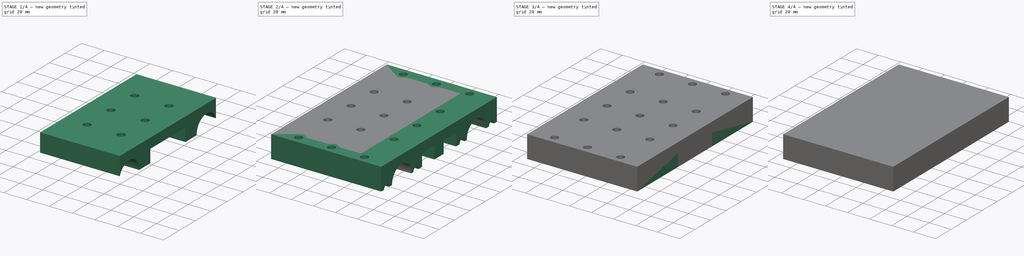
[diagram: build sequence overview — one tinted view per stage of 4, left to right]
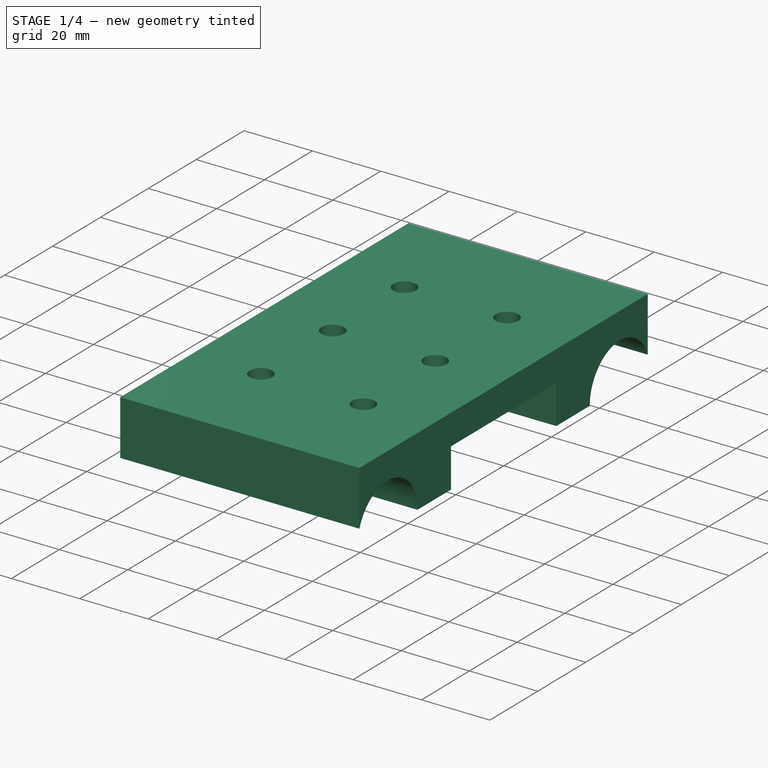
[diagram: stage 1 of 4 — iso view after this stage's code; geometry added in this stage tinted green]
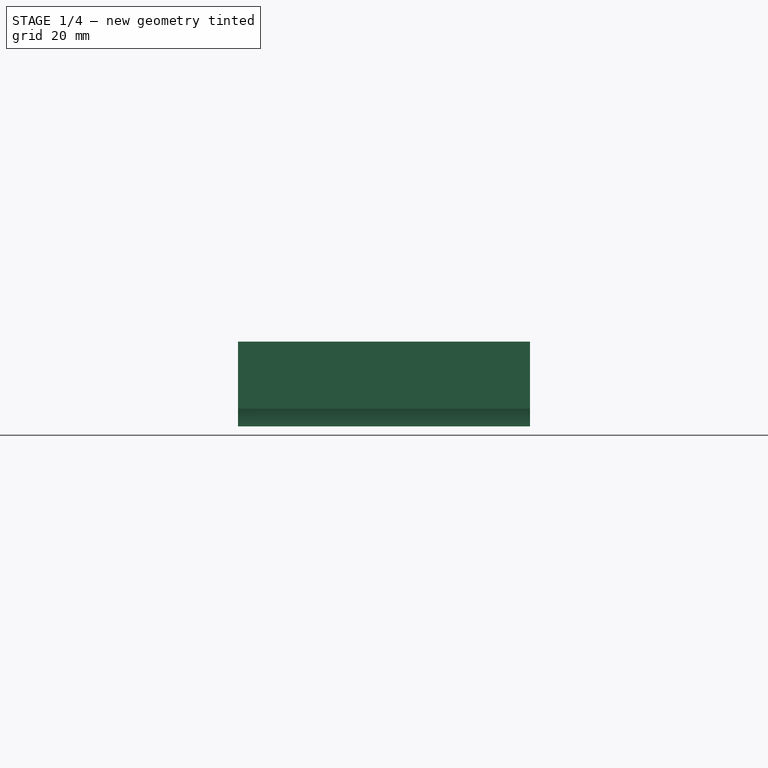
[diagram: stage 1 of 4 — front view after this stage's code; geometry added in this stage tinted green]
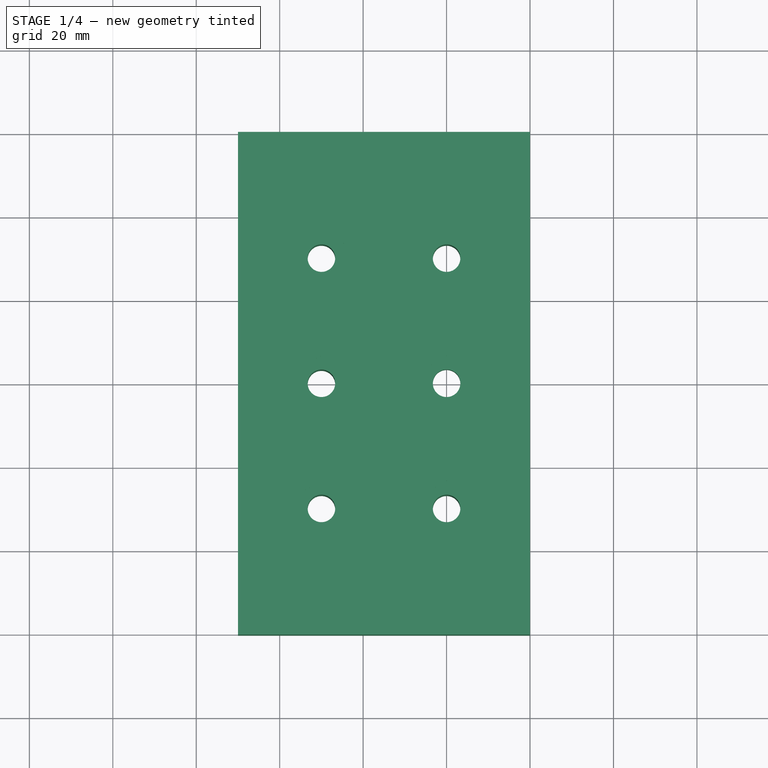
[diagram: stage 1 of 4 — top view after this stage's code; geometry added in this stage tinted green]
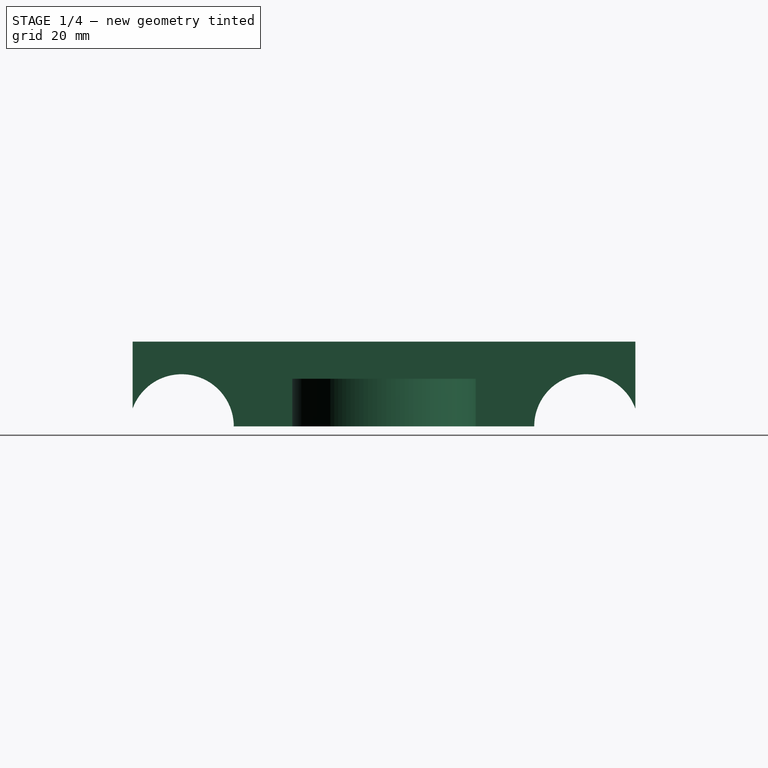
[diagram: stage 1 of 4 — right view after this stage's code; geometry added in this stage tinted green]
FCSTD DOCUMENT  (FreeCAD 0.16R6712 (Git))
Label: cnc_torch_idler_v19_10
License: All rights reserved
LicenseURL: http://en.wikipedia.org/wiki/All_rights_reserved
objects: Sketcher::SketchObject×10, PartDesign::Pocket×9, PartDesign::Pad×1
note: 30 computed .brp shape members not serialized (recipe doc carries the construction recipe); baked Part::Feature solids carry a one-line shape summary decoded from their .brp

FEATURE [Sketcher::SketchObject] Sketch008  label="NutCatcherSide2Sketch"
  Placement = pos=(-43.904,0,0) rot=(0.57735,-0.57735,-0.57735;2.0944rad)
  sketch-geometry (39):
    g0: LineSegment [constr] StartX=0 StartY=0 StartZ=0 EndX=-30 EndY=0 EndZ=0
    g1: LineSegment [constr] StartX=-30 StartY=0 StartZ=0 EndX=-68 EndY=0 EndZ=0
    g2: LineSegment [constr] StartX=0 StartY=0 StartZ=0 EndX=30 EndY=0 EndZ=0
    g3: LineSegment [constr] StartX=30 StartY=0 StartZ=0 EndX=68 EndY=0 EndZ=0
    g4: LineSegment StartX=-62.2842 StartY=3.3 StartZ=0 EndX=-68 EndY=6.6 EndZ=0
    g5: LineSegment StartX=-68 StartY=6.6 StartZ=0 EndX=-73.7158 EndY=3.3 EndZ=0
    g6: LineSegment StartX=-73.7158 StartY=3.3 StartZ=0 EndX=-73.7158 EndY=-3.3 EndZ=0
    g7: LineSegment StartX=-73.7158 StartY=-3.3 StartZ=0 EndX=-68 EndY=-6.6 EndZ=0
    g8: LineSegment StartX=-68 StartY=-6.6 StartZ=0 EndX=-62.2842 EndY=-3.3 EndZ=0
    g9: LineSegment StartX=-62.2842 StartY=-3.3 StartZ=0 EndX=-62.2842 EndY=3.3 EndZ=0
    g10: Circle [constr] CenterX=-68 CenterY=0 CenterZ=0 NormalX=0 NormalY=0 NormalZ=1 Radius=6.6
    g11: LineSegment StartX=-24.2842 StartY=3.3 StartZ=0 EndX=-30 EndY=6.6 EndZ=0
    g12: LineSegment StartX=-30 StartY=6.6 StartZ=0 EndX=-35.7158 EndY=3.3 EndZ=0
    g13: LineSegment StartX=-35.7158 StartY=3.3 StartZ=0 EndX=-35.7158 EndY=-3.3 EndZ=0
    g14: LineSegment StartX=-35.7158 StartY=-3.3 StartZ=0 EndX=-30 EndY=-6.6 EndZ=0
    g15: LineSegment StartX=-30 StartY=-6.6 StartZ=0 EndX=-24.2842 EndY=-3.3 EndZ=0
    g16: LineSegment StartX=-24.2842 StartY=-3.3 StartZ=0 EndX=-24.2842 EndY=3.3 EndZ=0
    g17: Circle [constr] CenterX=-30 CenterY=0 CenterZ=0 NormalX=0 NormalY=0 NormalZ=1 Radius=6.6
    g18: LineSegment StartX=5.71577 StartY=3.3 StartZ=0 EndX=0 EndY=6.6 EndZ=0
    g19: LineSegment StartX=0 StartY=6.6 StartZ=0 EndX=-5.71577 EndY=3.3 EndZ=0
    g20: LineSegment StartX=-5.71577 StartY=3.3 StartZ=0 EndX=-5.71577 EndY=-3.3 EndZ=0
    g21: LineSegment StartX=-5.71577 StartY=-3.3 StartZ=0 EndX=0 EndY=-6.6 EndZ=0
    g22: LineSegment StartX=0 StartY=-6.6 StartZ=0 EndX=5.71577 EndY=-3.3 EndZ=0
    g23: LineSegment StartX=5.71577 StartY=-3.3 StartZ=0 EndX=5.71577 EndY=3.3 EndZ=0
    g24: Circle [constr] CenterX=0 CenterY=0 CenterZ=0 NormalX=0 NormalY=0 NormalZ=1 Radius=6.6
    g25: LineSegment StartX=35.7158 StartY=3.3 StartZ=0 EndX=30 EndY=6.6 EndZ=0
    g26: LineSegment StartX=30 StartY=6.6 StartZ=0 EndX=24.2842 EndY=3.3 EndZ=0
    g27: LineSegment StartX=24.2842 StartY=3.3 StartZ=0 EndX=24.2842 EndY=-3.3 EndZ=0
    g28: LineSegment StartX=24.2842 StartY=-3.3 StartZ=0 EndX=30 EndY=-6.6 EndZ=0
    g29: LineSegment StartX=30 StartY=-6.6 StartZ=0 EndX=35.7158 EndY=-3.3 EndZ=0
    g30: LineSegment StartX=35.7158 StartY=-3.3 StartZ=0 EndX=35.7158 EndY=3.3 EndZ=0
    g31: Circle [constr] CenterX=30 CenterY=0 CenterZ=0 NormalX=0 NormalY=0 NormalZ=1 Radius=6.6
    g32: LineSegment StartX=73.7158 StartY=3.3 StartZ=0 EndX=68 EndY=6.6 EndZ=0
    g33: LineSegment StartX=68 StartY=6.6 StartZ=0 EndX=62.2842 EndY=3.3 EndZ=0
    g34: LineSegment StartX=62.2842 StartY=3.3 StartZ=0 EndX=62.2842 EndY=-3.3 EndZ=0
    g35: LineSegment StartX=62.2842 StartY=-3.3 StartZ=0 EndX=68 EndY=-6.6 EndZ=0
    g36: LineSegment StartX=68 StartY=-6.6 StartZ=0 EndX=73.7158 EndY=-3.3 EndZ=0
    g37: LineSegment StartX=73.7158 StartY=-3.3 StartZ=0 EndX=73.7158 EndY=3.3 EndZ=0
    g38: Circle [constr] CenterX=68 CenterY=0 CenterZ=0 NormalX=0 NormalY=0 NormalZ=1 Radius=6.6
  constraints (93):
    c: Horizontal(g0)
    c: Horizontal(g1)
    c: Horizontal(g2)
    c: Horizontal(g3)
    c: Coincident(g0,g-1)
    c: Coincident(g2,g-1)
    c: Coincident(g1,g0)
    c: Coincident(g3,g2)
    c: Equal(g0,g2)
    c: Equal(g1,g3)
    c: DistanceX(g0,g-1) = 30
    c: DistanceX(g1,g0) = 38
    c: Coincident(g4,g5)
    c: Coincident(g5,g6)
    c: Coincident(g6,g7)
    c: Coincident(g7,g8)
    c: Coincident(g8,g9)
    c: Coincident(g9,g4)
    c: Equal(g4, g5-g9) x5
    c: PointOnObject(g4,g10)
    c: PointOnObject(g5,g10)
    c: PointOnObject(g6,g10)
    c: PointOnObject(g7,g10)
    c: PointOnObject(g8,g10)
    c: PointOnObject(g9,g10)
    c: Vertical(g9)
    c: Coincident(g11,g12)
    c: Coincident(g12,g13)
    c: Coincident(g13,g14)
    c: Coincident(g14,g15)
    c: Coincident(g15,g16)
    c: Coincident(g16,g11)
    c: Equal(g11, g12-g16) x5
    c: PointOnObject(g11,g17)
    c: PointOnObject(g12,g17)
    c: PointOnObject(g13,g17)
    c: PointOnObject(g14,g17)
    c: PointOnObject(g15,g17)
    c: PointOnObject(g16,g17)
    c: Vertical(g16)
    c: Coincident(g18,g19)
    c: Coincident(g19,g20)
    c: Coincident(g20,g21)
    c: Coincident(g21,g22)
    c: Coincident(g22,g23)
    c: Coincident(g23,g18)
    c: Equal(g18, g19-g23) x5
    c: PointOnObject(g18,g24)
    c: PointOnObject(g19,g24)
    c: PointOnObject(g20,g24)
    c: PointOnObject(g21,g24)
    c: PointOnObject(g22,g24)
    c: PointOnObject(g23,g24)
    c: Vertical(g23)
    c: PointOnObject(g24,g-2)
    c: Coincident(g25,g26)
    c: Coincident(g26,g27)
    c: Coincident(g27,g28)
    c: Coincident(g28,g29)
    c: Coincident(g29,g30)
    c: Coincident(g30,g25)
    c: Equal(g25, g26-g30) x5
    c: PointOnObject(g25,g31)
    c: PointOnObject(g26,g31)
    c: PointOnObject(g27,g31)
    c: PointOnObject(g28,g31)
    c: PointOnObject(g29,g31)
    c: PointOnObject(g30,g31)
    c: Vertical(g30)
    c: Coincident(g32,g33)
    c: Coincident(g33,g34)
    c: Coincident(g34,g35)
    c: Coincident(g35,g36)
    c: Coincident(g36,g37)
    c: Coincident(g37,g32)
    c: Equal(g32, g33-g37) x5
    c: PointOnObject(g32,g38)
    c: PointOnObject(g33,g38)
    c: PointOnObject(g34,g38)
    c: PointOnObject(g35,g38)
    c: PointOnObject(g36,g38)
    c: PointOnObject(g37,g38)
    c: Vertical(g37)
    c: Equal(g10,g17)
    c: Equal(g17,g24)
    c: Equal(g24,g31)
    c: Equal(g31,g38)
    c: Radius(g24) = 6.6
    c: Coincident(g-1,g24)
    c: Coincident(g1,g10)
    c: Coincident(g0,g17)
    c: Coincident(g2,g31)
    c: Coincident(g3,g38)
FEATURE [PartDesign::Pocket] Pocket007  label="NutCatcherSide2Pocket"
  Length = 6.604
  Type = 0
FEATURE [Sketcher::SketchObject] Sketch009  label="cutoff_sketch"
  ExternalGeometry = -> [Pocket007]
  Placement = pos=(0,0,20.32) rot=(0,0,1;0rad)
  Support = -> Pocket007 [Face5]
  sketch-geometry (8):
    g0: LineSegment StartX=-50 StartY=75 StartZ=0 EndX=50 EndY=75 EndZ=0
    g1: LineSegment StartX=50 StartY=75 StartZ=0 EndX=50 EndY=-75 EndZ=0
    g2: LineSegment StartX=50 StartY=-75 StartZ=0 EndX=-50 EndY=-75 EndZ=0
    g3: LineSegment StartX=-50 StartY=75 StartZ=0 EndX=-50 EndY=60.25 EndZ=0
    g4: LineSegment StartX=-50 StartY=-75 StartZ=0 EndX=-50 EndY=-60.25 EndZ=0
    g5: LineSegment StartX=-50 StartY=60.25 StartZ=0 EndX=20 EndY=60.25 EndZ=0
    g6: LineSegment StartX=-50 StartY=-60.25 StartZ=0 EndX=20 EndY=-60.25 EndZ=0
    g7: LineSegment StartX=20 StartY=60.25 StartZ=0 EndX=20 EndY=-60.25 EndZ=0
  constraints (22):
    c: Coincident(g0,g1)
    c: Coincident(g1,g2)
    c: Horizontal(g0)
    c: Horizontal(g2)
    c: Vertical(g1)
    c: Coincident(g0,g-4)
    c: Coincident(g1,g-5)
    c: Coincident(g3,g0)
    c: Vertical(g3)
    c: Coincident(g4,g2)
    c: Vertical(g4)
    c: Equal(g4,g3)
    c: DistanceY(g3,g3) = 14.75
    c: Coincident(g5,g3)
    c: Horizontal(g5)
    c: Coincident(g6,g4)
    c: Horizontal(g6)
    c: Coincident(g7,g5)
    c: Coincident(g7,g6)
    c: Vertical(g7)
    c: DistanceX(g5,g0) = 30
    c: Coincident(g-5,g2)
FEATURE [PartDesign::Pocket] Pocket008  label="cutoff_pocket"
  Length = 50.8
  Sketch = -> Sketch009
  Type = 0
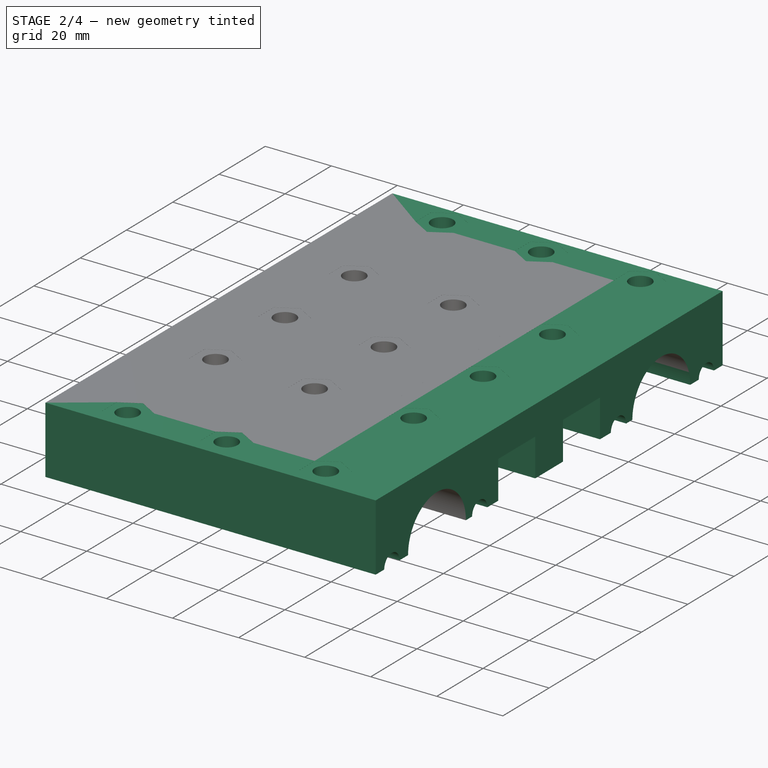
[diagram: stage 2 of 4 — iso view after this stage's code; geometry added in this stage tinted green]
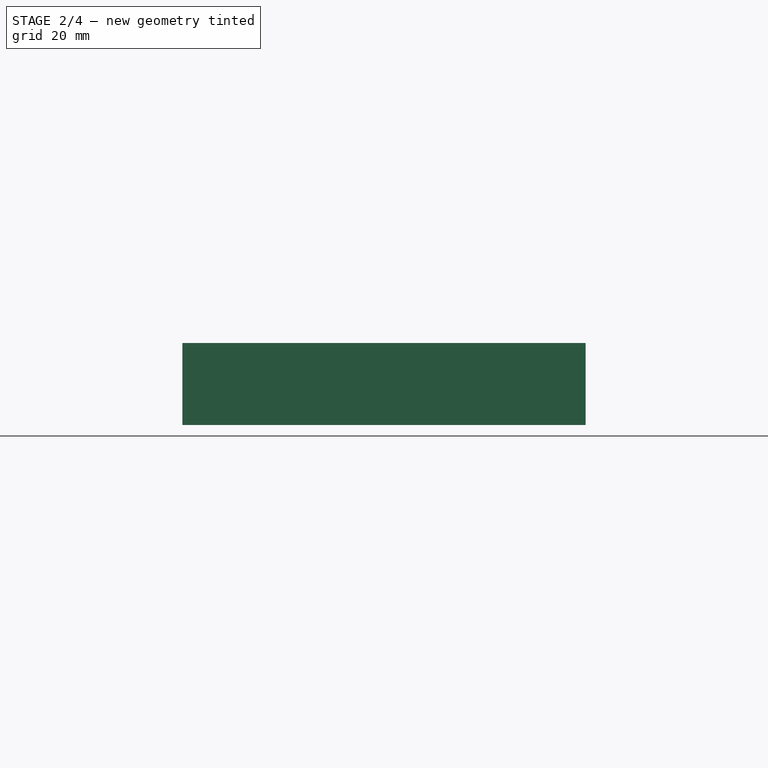
[diagram: stage 2 of 4 — front view after this stage's code; geometry added in this stage tinted green]
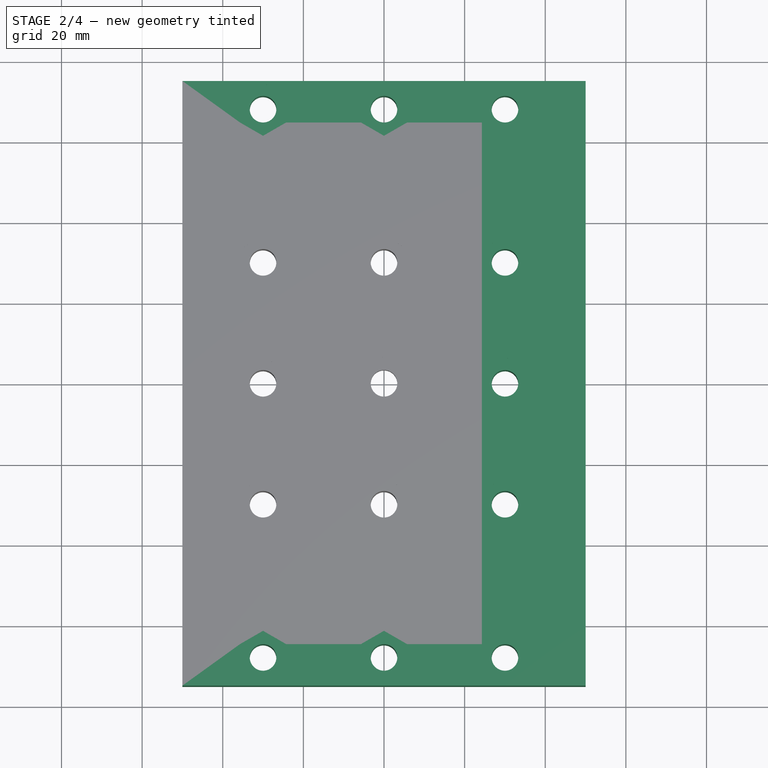
[diagram: stage 2 of 4 — top view after this stage's code; geometry added in this stage tinted green]
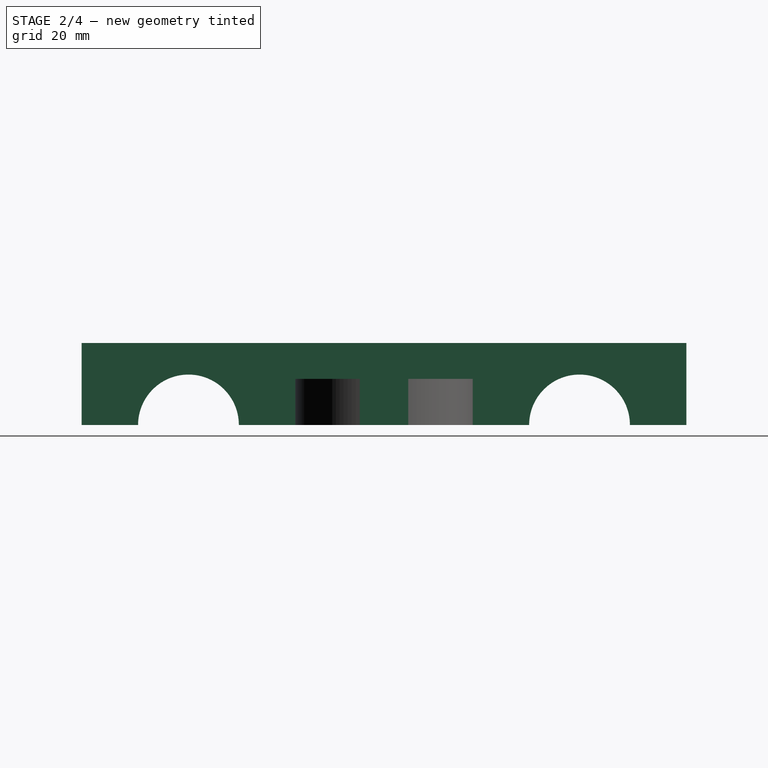
[diagram: stage 2 of 4 — right view after this stage's code; geometry added in this stage tinted green]
FEATURE [Sketcher::SketchObject] Sketch005  label="BoltHolesSide1Sketch"
  Placement = pos=(50,0,0) rot=(0.57735,0.57735,0.57735;2.0944rad)
  sketch-geometry (8):
    g0: LineSegment [constr] StartX=0 StartY=0 StartZ=0 EndX=-30 EndY=0 EndZ=0
    g1: LineSegment [constr] StartX=0 StartY=0 StartZ=0 EndX=30 EndY=0 EndZ=0
    g2: Circle CenterX=-30 CenterY=0 CenterZ=0 NormalX=0 NormalY=0 NormalZ=1 Radius=3.3
    g3: Circle CenterX=30 CenterY=0 CenterZ=0 NormalX=0 NormalY=0 NormalZ=1 Radius=3.3
    g4: LineSegment [constr] StartX=-30 StartY=0 StartZ=0 EndX=-68 EndY=0 EndZ=0
    g5: LineSegment [constr] StartX=30 StartY=0 StartZ=0 EndX=68 EndY=0 EndZ=0
    g6: Circle CenterX=-68 CenterY=0 CenterZ=0 NormalX=0 NormalY=0 NormalZ=1 Radius=3.3
    g7: Circle CenterX=68 CenterY=0 CenterZ=0 NormalX=0 NormalY=0 NormalZ=1 Radius=3.3
  constraints (20):
    c: Horizontal(g0)
    c: Coincident(g0,g-1)
    c: Horizontal(g1)
    c: Coincident(g1,g-1)
    c: Equal(g0,g1)
    c: DistanceX(g0,g-1) = 30
    c: Coincident(g2,g0)
    c: Coincident(g3,g1)
    c: Equal(g2,g3)
    c: Radius(g2) = 3.3
    c: Horizontal(g4)
    c: Horizontal(g5)
    c: Coincident(g4,g0)
    c: Coincident(g5,g1)
    c: Equal(g5,g4)
    c: DistanceX(g4,g4) = 38
    c: Equal(g7,g6)
    c: Equal(g6,g2)
    c: Coincident(g6,g4)
    c: Coincident(g7,g5)
FEATURE [PartDesign::Pocket] Pocket004  label="BoltHolesSide1Pocket"
  Length = 6.6
  Type = 0
FEATURE [Sketcher::SketchObject] Sketch006  label="NutCatcherSide1Sketch"
  Placement = pos=(43.4,0,0) rot=(0.57735,0.57735,0.57735;2.0944rad)
  sketch-geometry (32):
    g0: LineSegment [constr] StartX=0 StartY=0 StartZ=0 EndX=-30 EndY=0 EndZ=0
    g1: LineSegment [constr] StartX=-30 StartY=0 StartZ=0 EndX=-68 EndY=0 EndZ=0
    g2: LineSegment [constr] StartX=0 StartY=0 StartZ=0 EndX=30 EndY=0 EndZ=0
    g3: LineSegment [constr] StartX=30 StartY=0 StartZ=0 EndX=68 EndY=0 EndZ=0
    g4: LineSegment StartX=-62.2842 StartY=3.3 StartZ=0 EndX=-68 EndY=6.6 EndZ=0
    g5: LineSegment StartX=-68 StartY=6.6 StartZ=0 EndX=-73.7158 EndY=3.3 EndZ=0
    g6: LineSegment StartX=-73.7158 StartY=3.3 StartZ=0 EndX=-73.7158 EndY=-3.3 EndZ=0
    g7: LineSegment StartX=-73.7158 StartY=-3.3 StartZ=0 EndX=-68 EndY=-6.6 EndZ=0
    g8: LineSegment StartX=-68 StartY=-6.6 StartZ=0 EndX=-62.2842 EndY=-3.3 EndZ=0
    g9: LineSegment StartX=-62.2842 StartY=-3.3 StartZ=0 EndX=-62.2842 EndY=3.3 EndZ=0
    g10: Circle [constr] CenterX=-68 CenterY=0 CenterZ=0 NormalX=0 NormalY=0 NormalZ=1 Radius=6.6
    g11: LineSegment StartX=-24.2842 StartY=3.3 StartZ=0 EndX=-30 EndY=6.6 EndZ=0
    g12: LineSegment StartX=-30 StartY=6.6 StartZ=0 EndX=-35.7158 EndY=3.3 EndZ=0
    g13: LineSegment StartX=-35.7158 StartY=3.3 StartZ=0 EndX=-35.7158 EndY=-3.3 EndZ=0
    g14: LineSegment StartX=-35.7158 StartY=-3.3 StartZ=0 EndX=-30 EndY=-6.6 EndZ=0
    g15: LineSegment StartX=-30 StartY=-6.6 StartZ=0 EndX=-24.2842 EndY=-3.3 EndZ=0
    g16: LineSegment StartX=-24.2842 StartY=-3.3 StartZ=0 EndX=-24.2842 EndY=3.3 EndZ=0
    g17: Circle [constr] CenterX=-30 CenterY=0 CenterZ=0 NormalX=0 NormalY=0 NormalZ=1 Radius=6.6
    g18: LineSegment StartX=35.7158 StartY=3.3 StartZ=0 EndX=30 EndY=6.6 EndZ=0
    g19: LineSegment StartX=30 StartY=6.6 StartZ=0 EndX=24.2842 EndY=3.3 EndZ=0
    g20: LineSegment StartX=24.2842 StartY=3.3 StartZ=0 EndX=24.2842 EndY=-3.3 EndZ=0
    g21: LineSegment StartX=24.2842 StartY=-3.3 StartZ=0 EndX=30 EndY=-6.6 EndZ=0
    g22: LineSegment StartX=30 StartY=-6.6 StartZ=0 EndX=35.7158 EndY=-3.3 EndZ=0
    g23: LineSegment StartX=35.7158 StartY=-3.3 StartZ=0 EndX=35.7158 EndY=3.3 EndZ=0
    g24: Circle [constr] CenterX=30 CenterY=0 CenterZ=0 NormalX=0 NormalY=0 NormalZ=1 Radius=6.6
    g25: LineSegment StartX=73.7158 StartY=3.3 StartZ=0 EndX=68 EndY=6.6 EndZ=0
    g26: LineSegment StartX=68 StartY=6.6 StartZ=0 EndX=62.2842 EndY=3.3 EndZ=0
    g27: LineSegment StartX=62.2842 StartY=3.3 StartZ=0 EndX=62.2842 EndY=-3.3 EndZ=0
    g28: LineSegment StartX=62.2842 StartY=-3.3 StartZ=0 EndX=68 EndY=-6.6 EndZ=0
    g29: LineSegment StartX=68 StartY=-6.6 StartZ=0 EndX=73.7158 EndY=-3.3 EndZ=0
    g30: LineSegment StartX=73.7158 StartY=-3.3 StartZ=0 EndX=73.7158 EndY=3.3 EndZ=0
    g31: Circle [constr] CenterX=68 CenterY=0 CenterZ=0 NormalX=0 NormalY=0 NormalZ=1 Radius=6.6
  constraints (72):
    c: Horizontal(g0)
    c: Horizontal(g1)
    c: Horizontal(g2)
    c: Horizontal(g3)
    c: Equal(g0,g2)
    c: DistanceX(g0,g-1) = 30
    c: Coincident(g1,g0)
    c: Coincident(g3,g2)
    c: Equal(g1,g3)
    c: DistanceX(g1,g0) = 38
    c: Coincident(g4,g5)
    c: Coincident(g5,g6)
    c: Coincident(g6,g7)
    c: Coincident(g7,g8)
    c: Coincident(g8,g9)
    c: Coincident(g9,g4)
    c: Equal(g4, g5-g9) x5
    c: PointOnObject(g4,g10)
    c: PointOnObject(g5,g10)
    c: PointOnObject(g6,g10)
    c: PointOnObject(g7,g10)
    c: PointOnObject(g8,g10)
    c: PointOnObject(g9,g10)
    c: Vertical(g9)
    c: Coincident(g11,g12)
    c: Coincident(g12,g13)
    c: Coincident(g13,g14)
    c: Coincident(g14,g15)
    c: Coincident(g15,g16)
    c: Coincident(g16,g11)
    c: Equal(g11, g12-g16) x5
    c: PointOnObject(g11,g17)
    c: PointOnObject(g12,g17)
    c: PointOnObject(g13,g17)
    c: PointOnObject(g14,g17)
    c: PointOnObject(g15,g17)
    c: PointOnObject(g16,g17)
    c: Vertical(g16)
    c: Coincident(g18,g19)
    c: Coincident(g19,g20)
    c: Coincident(g20,g21)
    c: Coincident(g21,g22)
    c: Coincident(g22,g23)
    c: Coincident(g23,g18)
    c: Equal(g18, g19-g23) x5
    c: PointOnObject(g18,g24)
    c: PointOnObject(g19,g24)
    c: PointOnObject(g20,g24)
    c: PointOnObject(g21,g24)
    c: PointOnObject(g22,g24)
    c: PointOnObject(g23,g24)
    c: Vertical(g23)
    c: Coincident(g25,g26)
    c: Coincident(g26,g27)
    c: Coincident(g27,g28)
    c: Coincident(g28,g29)
    c: Coincident(g29,g30)
    c: Coincident(g30,g25)
    c: Equal(g25, g26-g30) x5
    c: PointOnObject(g25,g31)
    c: PointOnObject(g26,g31)
    c: PointOnObject(g27,g31)
    c: PointOnObject(g28,g31)
    c: PointOnObject(g29,g31)
    c: PointOnObject(g30,g31)
    c: Vertical(g30)
    c: Equal(g31,g24)
    c: Equal(g17,g10)
    c: Coincident(g3,g31)
    c: Coincident(g2,g24)
    c: Coincident(g0,g17)
    c: Coincident(g1,g10)
FEATURE [PartDesign::Pocket] Pocket005  label="NutCatcherSide1Pocket"
  Length = 6.6
  Type = 0
FEATURE [Sketcher::SketchObject] Sketch007  label="BoltHolesSide2Sketch"
  Placement = pos=(-50,0,0) rot=(0.57735,-0.57735,-0.57735;2.0944rad)
  sketch-geometry (9):
    g0: LineSegment [constr] StartX=0 StartY=0 StartZ=0 EndX=-30 EndY=0 EndZ=0
    g1: LineSegment [constr] StartX=-30 StartY=0 StartZ=0 EndX=-68 EndY=0 EndZ=0
    g2: LineSegment [constr] StartX=0 StartY=0 StartZ=0 EndX=30 EndY=0 EndZ=0
    g3: LineSegment [constr] StartX=30 StartY=0 StartZ=0 EndX=68 EndY=0 EndZ=0
    g4: Circle CenterX=-68 CenterY=0 CenterZ=0 NormalX=0 NormalY=0 NormalZ=1 Radius=3.3
    g5: Circle CenterX=-30 CenterY=0 CenterZ=0 NormalX=0 NormalY=0 NormalZ=1 Radius=3.3
    g6: Circle CenterX=0 CenterY=0 CenterZ=0 NormalX=0 NormalY=0 NormalZ=1 Radius=3.3
    g7: Circle CenterX=30 CenterY=0 CenterZ=0 NormalX=0 NormalY=0 NormalZ=1 Radius=3.3
    g8: Circle CenterX=68 CenterY=0 CenterZ=0 NormalX=0 NormalY=0 NormalZ=1 Radius=3.3
  constraints (22):
    c: Horizontal(g0)
    c: Horizontal(g1)
    c: Horizontal(g2)
    c: Horizontal(g3)
    c: Coincident(g0,g-1)
    c: Coincident(g2,g-1)
    c: Coincident(g1,g0)
    c: Coincident(g3,g2)
    c: Equal(g0,g2)
    c: DistanceX(g0,g-1) = 30
    c: Equal(g1,g3)
    c: DistanceX(g1,g0) = 38
    c: Equal(g4,g5)
    c: Equal(g5,g6)
    c: Equal(g6,g7)
    c: Equal(g7,g8)
    c: Radius(g6) = 3.3
    c: Coincident(g-1,g6)
    c: Coincident(g2,g7)
    c: Coincident(g0,g5)
    c: Coincident(g1,g4)
    c: Coincident(g3,g8)
FEATURE [PartDesign::Pocket] Pocket006  label="BoltHolesSide2Pocket"
  Length = 6.096
  Type = 0
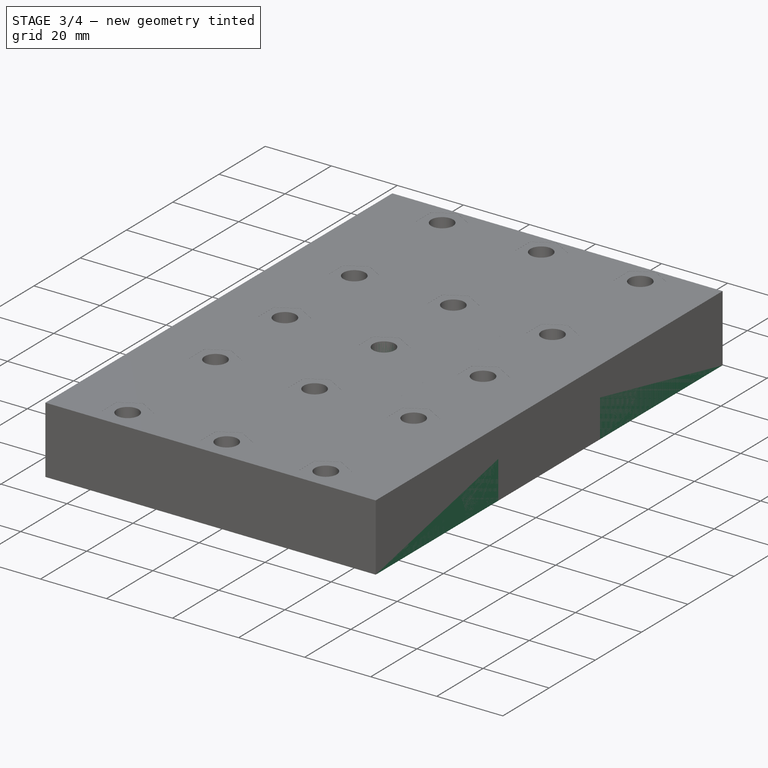
[diagram: stage 3 of 4 — iso view after this stage's code; geometry added in this stage tinted green]
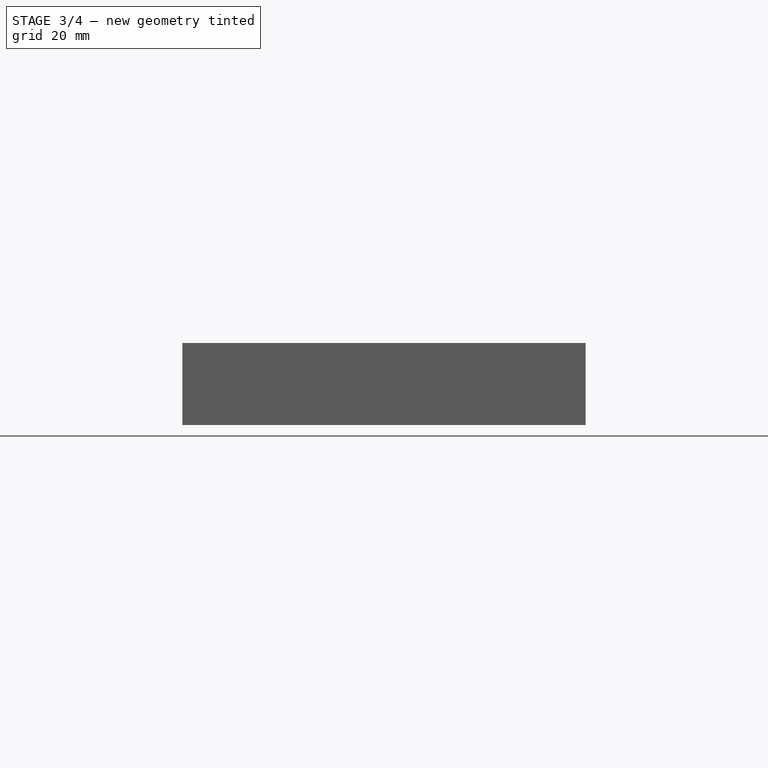
[diagram: stage 3 of 4 — front view after this stage's code; geometry added in this stage tinted green]
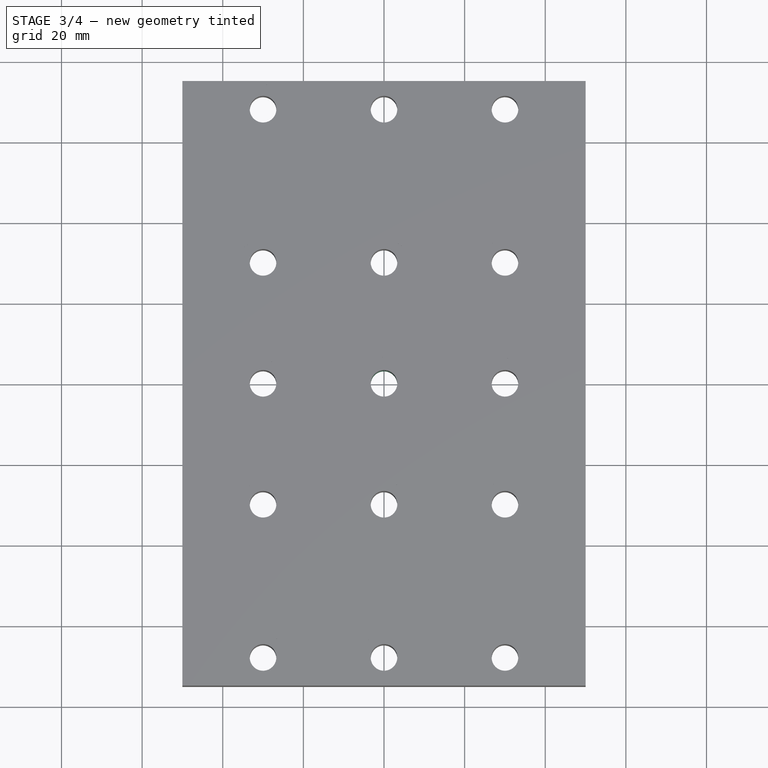
[diagram: stage 3 of 4 — top view after this stage's code; geometry added in this stage tinted green]
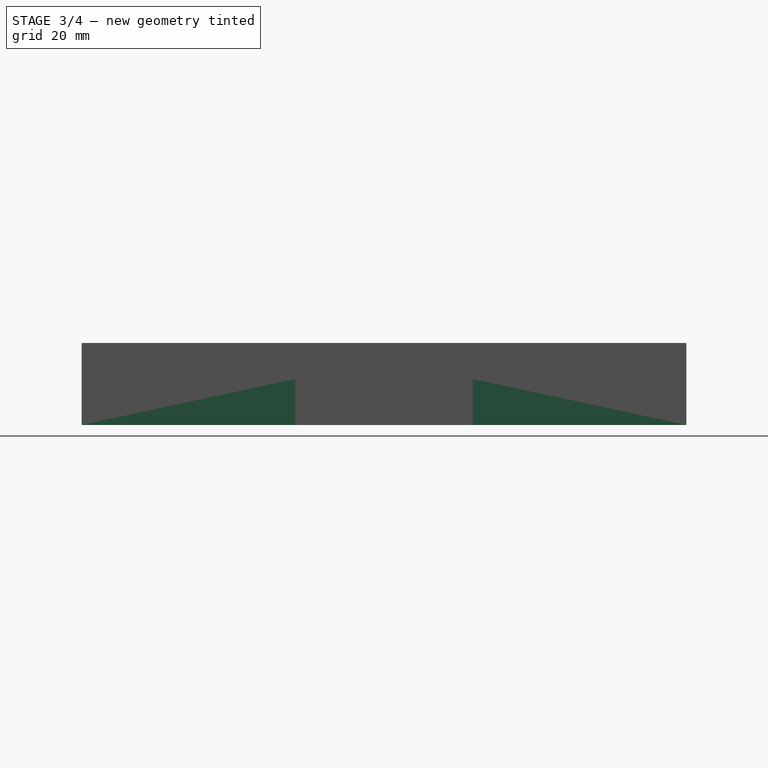
[diagram: stage 3 of 4 — right view after this stage's code; geometry added in this stage tinted green]
FEATURE [Sketcher::SketchObject] Sketch002  label="BoltHolesFrontSketch"
  Placement = pos=(0,0,20.2946) rot=(0,0,1;0rad)
  sketch-geometry (31):
    g0: LineSegment [constr] StartX=-30 StartY=30 StartZ=0 EndX=30 EndY=30 EndZ=0
    g1: LineSegment [constr] StartX=30 StartY=30 StartZ=0 EndX=30 EndY=-30 EndZ=0
    g2: LineSegment [constr] StartX=30 StartY=-30 StartZ=0 EndX=-30 EndY=-30 EndZ=0
    g3: LineSegment [constr] StartX=-30 StartY=-30 StartZ=0 EndX=-30 EndY=30 EndZ=0
    g4: GeomPoint [constr] X=0 Y=30 Z=0
    g5: GeomPoint [constr] X=-30 Y=0 Z=0
    g6: GeomPoint [constr] X=30 Y=0 Z=0
    g7: GeomPoint [constr] X=0 Y=-30 Z=0
    g8: LineSegment [constr] StartX=0 StartY=0 StartZ=0 EndX=0 EndY=30 EndZ=0
    g9: LineSegment [constr] StartX=0 StartY=0 StartZ=0 EndX=-30 EndY=0 EndZ=0
    g10: Circle CenterX=-30 CenterY=30 CenterZ=0 NormalX=0 NormalY=0 NormalZ=1 Radius=3.3
    g11: Circle CenterX=0 CenterY=30 CenterZ=0 NormalX=0 NormalY=0 NormalZ=1 Radius=3.3
    g12: Circle CenterX=30 CenterY=30 CenterZ=0 NormalX=0 NormalY=0 NormalZ=1 Radius=3.3
    g13: Circle CenterX=-30 CenterY=0 CenterZ=0 NormalX=0 NormalY=0 NormalZ=1 Radius=3.3
    g14: Circle CenterX=0 CenterY=0 CenterZ=0 NormalX=0 NormalY=0 NormalZ=1 Radius=3.3
    g15: Circle CenterX=30 CenterY=0 CenterZ=0 NormalX=0 NormalY=0 NormalZ=1 Radius=3.3
    g16: Circle CenterX=-30 CenterY=-30 CenterZ=0 NormalX=0 NormalY=0 NormalZ=1 Radius=3.3
    g17: Circle CenterX=0 CenterY=-30 CenterZ=0 NormalX=0 NormalY=0 NormalZ=1 Radius=3.3
    g18: Circle CenterX=30 CenterY=-30 CenterZ=0 NormalX=0 NormalY=0 NormalZ=1 Radius=3.3
    g19: LineSegment [constr] StartX=30 StartY=30 StartZ=0 EndX=30 EndY=68 EndZ=0
    g20: LineSegment [constr] StartX=-30 StartY=-30 StartZ=0 EndX=-30 EndY=-68 EndZ=0
    g21: LineSegment [constr] StartX=30 StartY=68 StartZ=0 EndX=0 EndY=68 EndZ=0
    g22: LineSegment [constr] StartX=0 StartY=68 StartZ=0 EndX=-30 EndY=68 EndZ=0
    g23: LineSegment [constr] StartX=-30 StartY=-68 StartZ=0 EndX=0 EndY=-68 EndZ=0
    g24: LineSegment [constr] StartX=0 StartY=-68 StartZ=0 EndX=30 EndY=-68 EndZ=0
    g25: Circle CenterX=-30 CenterY=68 CenterZ=0 NormalX=0 NormalY=0 NormalZ=1 Radius=3.3
    g26: Circle CenterX=0 CenterY=68 CenterZ=0 NormalX=0 NormalY=0 NormalZ=1 Radius=3.3
    g27: Circle CenterX=30 CenterY=68 CenterZ=0 NormalX=0 NormalY=0 NormalZ=1 Radius=3.3
    g28: Circle CenterX=-30 CenterY=-68 CenterZ=0 NormalX=0 NormalY=0 NormalZ=1 Radius=3.3
    g29: Circle CenterX=0 CenterY=-68 CenterZ=0 NormalX=0 NormalY=0 NormalZ=1 Radius=3.3
    g30: Circle CenterX=30 CenterY=-68 CenterZ=0 NormalX=0 NormalY=0 NormalZ=1 Radius=3.3
  constraints (68):
    c: Coincident(g0,g1)
    c: Coincident(g1,g2)
    c: Coincident(g2,g3)
    c: Coincident(g3,g0)
    c: Horizontal(g0)
    c: Horizontal(g2)
    c: Vertical(g1)
    c: Vertical(g3)
    c: Symmetric(g0,g0,g4)
    c: Symmetric(g0,g2,g5)
    c: Symmetric(g0,g1,g6)
    c: Symmetric(g1,g2,g7)
    c: Coincident(g8,g4)
    c: Coincident(g8,g-1)
    c: Coincident(g9,g5)
    c: Coincident(g9,g-1)
    c: Perpendicular(g8,g0)
    c: Perpendicular(g8,g9)
    c: Equal(g9,g8)
    c: DistanceY(g-1,g4) = 30
    c: Equal(g10,g11)
    c: Equal(g11,g12)
    c: Equal(g12,g13)
    c: Equal(g13,g14)
    c: Equal(g14,g15)
    c: Equal(g15,g16)
    c: Equal(g16,g17)
    c: Equal(g17,g18)
    c: Radius(g14) = 3.3
    c: Coincident(g10,g0)
    c: Coincident(g11,g4)
    c: Coincident(g12,g0)
    c: Coincident(g13,g5)
    c: Coincident(g14,g-1)
    c: Coincident(g15,g6)
    c: Coincident(g16,g2)
    c: Coincident(g17,g7)
    c: Coincident(g18,g1)
    c: Vertical(g19)
    c: Coincident(g19,g0)
    c: Vertical(g20)
    c: Coincident(g20,g2)
    c: Equal(g20,g19)
    c: DistanceY(g19,g19) = 38
    c: Horizontal(g21)
    c: Horizontal(g22)
    c: Horizontal(g23)
    c: Horizontal(g24)
    c: Coincident(g23,g20)
    c: Coincident(g24,g23)
    c: Coincident(g21,g19)
    c: Coincident(g22,g21)
    c: Equal(g22,g21)
    c: Equal(g21,g24)
    c: Equal(g24,g23)
    c: Equal(g23,g8)
    c: Coincident(g25,g22)
    c: Coincident(g26,g21)
    c: Coincident(g27,g19)
    c: Coincident(g28,g20)
    c: Coincident(g29,g23)
    c: Coincident(g30,g24)
    c: Equal(g30,g29)
    c: Equal(g29,g28)
    c: Equal(g28,g27)
    c: Equal(g27,g26)
    c: Equal(g26,g25)
    c: Equal(g25,g14)
FEATURE [PartDesign::Pocket] Pocket001  label="BoltHolesFrontPocket"
  Length = 5
  Type = 1
FEATURE [Sketcher::SketchObject] Sketch003  label="BeltPassageSketch"
  Placement = pos=(0,0,0) rot=(1,0,0;3.14159rad)
  sketch-geometry (11):
    g0: ArcOfCircle CenterX=0 CenterY=0 CenterZ=0 NormalX=0 NormalY=0 NormalZ=1 Radius=22 StartAngle=1.5708 EndAngle=4.71239
    g1: LineSegment StartX=-2e-12 StartY=22 StartZ=0 EndX=50 EndY=22 EndZ=0
    g2: LineSegment StartX=50 StartY=22 StartZ=0 EndX=50 EndY=6 EndZ=0
    g3: LineSegment StartX=7e-12 StartY=-22 StartZ=0 EndX=50 EndY=-22 EndZ=0
    g4: LineSegment StartX=50 StartY=-22 StartZ=0 EndX=50 EndY=-6 EndZ=0
    g5: LineSegment StartX=50 StartY=6 StartZ=0 EndX=22 EndY=6 EndZ=0
    g6: LineSegment StartX=50 StartY=-6 StartZ=0 EndX=22 EndY=-6 EndZ=0
    g7: LineSegment StartX=22 StartY=6 StartZ=0 EndX=22 EndY=-6 EndZ=0
    g8: GeomPoint [constr] X=22 Y=0 Z=0
    g9: LineSegment [constr] StartX=22 StartY=0 StartZ=0 EndX=0 EndY=0 EndZ=0
    g10: LineSegment [constr] StartX=-2e-12 StartY=22 StartZ=0 EndX=-2e-12 EndY=0 EndZ=0
  constraints (32):
    c: PointOnObject(g-1,g-1)
    c: Coincident(g0,g-1)
    c: DistanceX(g0,g-1) = 0
    c: DistanceX(g0,g-1) = 0
    c: DistanceY(g-1,g0) = 22
    c: Horizontal(g1)
    c: Coincident(g1,g0)
    c: Vertical(g2)
    c: Coincident(g2,g1)
    c: Horizontal(g3)
    c: Coincident(g3,g0)
    c: Equal(g1,g3)
    c: Vertical(g4)
    c: Coincident(g4,g3)
    c: Equal(g2,g4)
    c: Horizontal(g5)
    c: Coincident(g5,g2)
    c: Horizontal(g6)
    c: Coincident(g6,g4)
    c: Vertical(g7)
    c: Coincident(g7,g5)
    c: Coincident(g7,g6)
    c: Symmetric(g5,g6,g8)
    c: Horizontal(g9)
    c: Coincident(g9,g8)
    c: Coincident(g9,g-1)
    c: Vertical(g10)
    c: Coincident(g10,g0)
    c: Coincident(g10,g-1)
    c: Equal(g10,g9)
    c: DistanceY(g6,g5) = 12
    c: DistanceX(g0,g1) = 50
FEATURE [PartDesign::Pocket] Pocket002  label="BeltPassagePocket"
  Length = 11.43
  Type = 0
FEATURE [Sketcher::SketchObject] Sketch004  label="RodSketch"
  Placement = pos=(50,0,0) rot=(0.57735,0.57735,0.57735;2.0944rad)
  sketch-geometry (4):
    g0: LineSegment [constr] StartX=0 StartY=0 StartZ=0 EndX=-48.5 EndY=0 EndZ=0
    g1: LineSegment [constr] StartX=0 StartY=0 StartZ=0 EndX=48.5 EndY=0 EndZ=0
    g2: Circle CenterX=-48.5 CenterY=0 CenterZ=0 NormalX=0 NormalY=0 NormalZ=1 Radius=12.5
    g3: Circle CenterX=48.5 CenterY=0 CenterZ=0 NormalX=0 NormalY=0 NormalZ=1 Radius=12.5
  constraints (10):
    c: Horizontal(g0)
    c: Coincident(g0,g-1)
    c: Horizontal(g1)
    c: Coincident(g1,g-1)
    c: Equal(g0,g1)
    c: Coincident(g2,g0)
    c: Coincident(g3,g1)
    c: Equal(g2,g3)
    c: Radius(g2) = 12.5
    c: DistanceX(g0,g-1) = 48.5
FEATURE [PartDesign::Pocket] Pocket003  label="RodPocket"
  Length = 95
  Type = 1
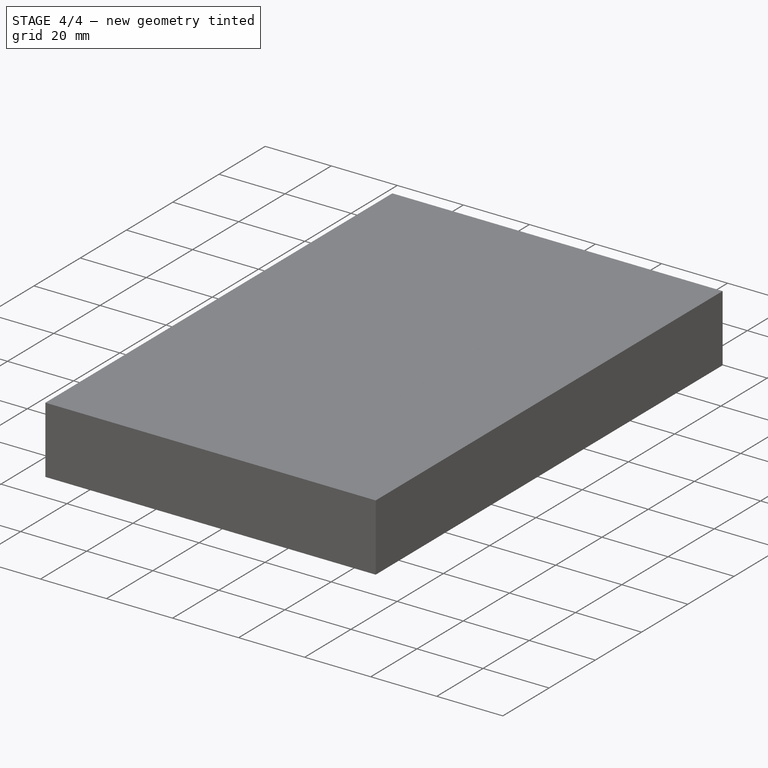
[diagram: stage 4 of 4 — iso view after this stage's code; geometry added in this stage tinted green]
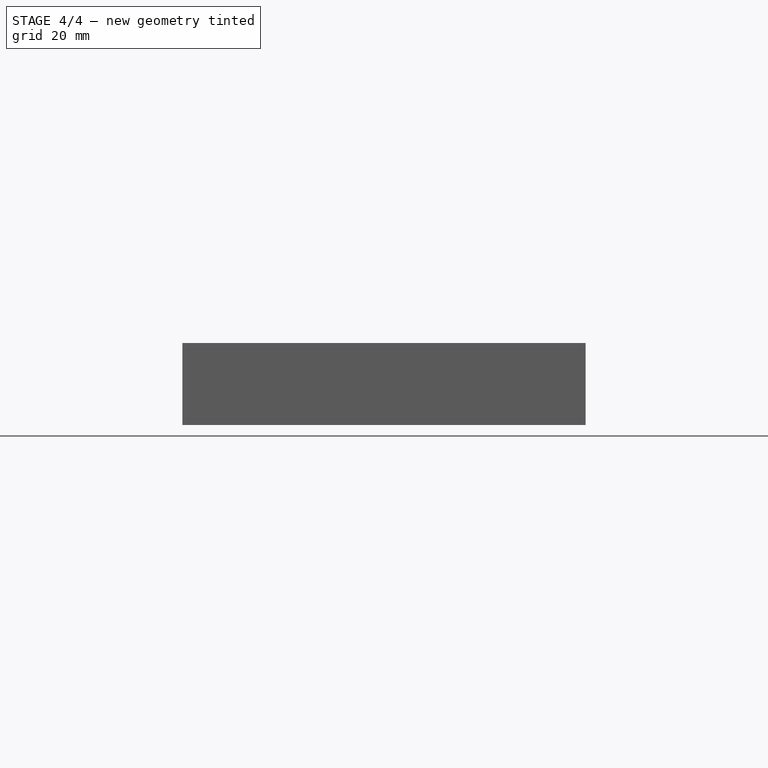
[diagram: stage 4 of 4 — front view after this stage's code; geometry added in this stage tinted green]
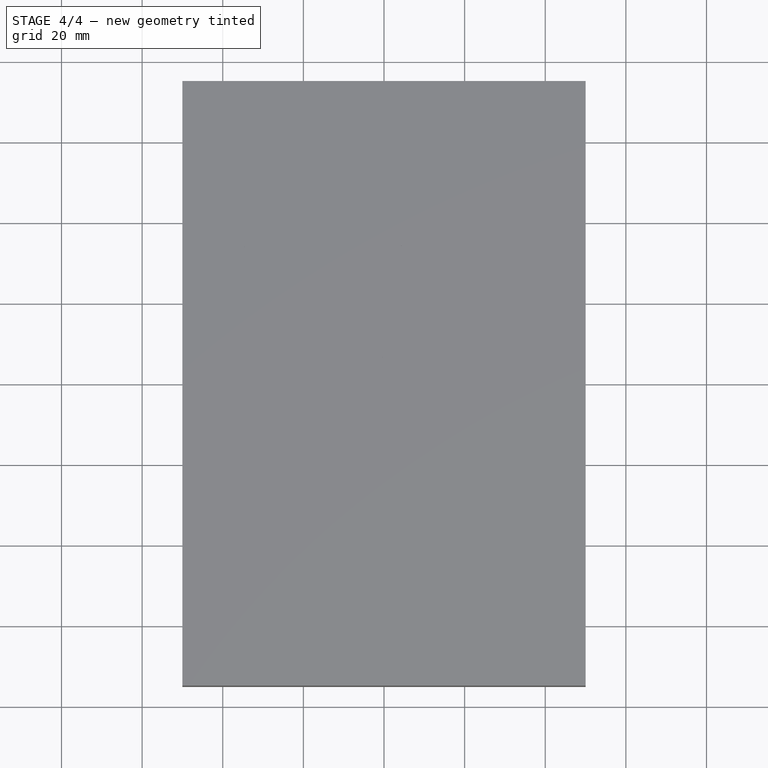
[diagram: stage 4 of 4 — top view after this stage's code; geometry added in this stage tinted green]
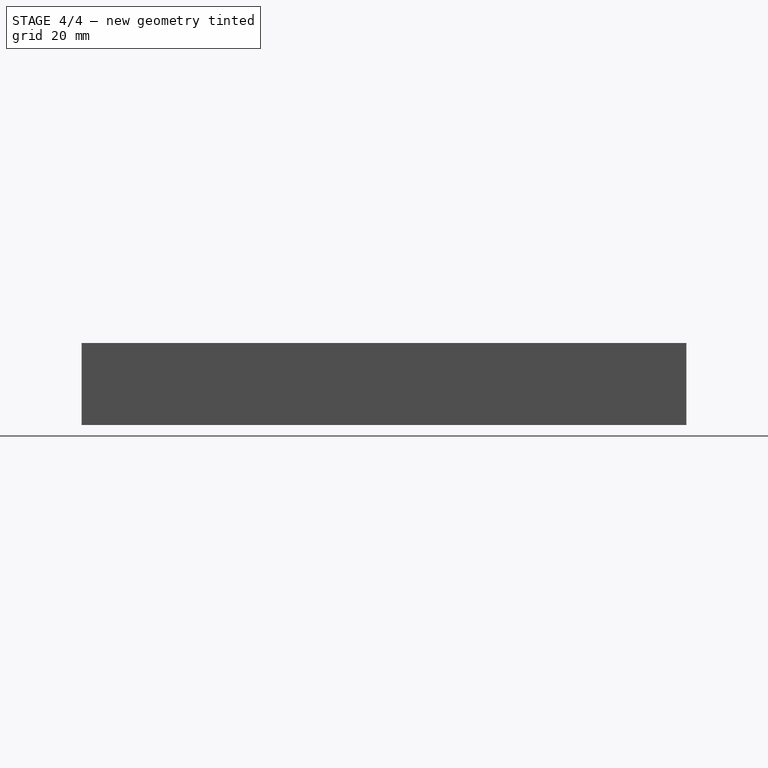
[diagram: stage 4 of 4 — right view after this stage's code; geometry added in this stage tinted green]
FEATURE [Sketcher::SketchObject] Sketch  label="IdlerBlockSketch"
  sketch-geometry (6):
    g0: LineSegment StartX=-50 StartY=75 StartZ=0 EndX=50 EndY=75 EndZ=0
    g1: LineSegment StartX=50 StartY=75 StartZ=0 EndX=50 EndY=-75 EndZ=0
    g2: LineSegment StartX=50 StartY=-75 StartZ=0 EndX=-50 EndY=-75 EndZ=0
    g3: LineSegment StartX=-50 StartY=-75 StartZ=0 EndX=-50 EndY=75 EndZ=0
    g4: GeomPoint [constr] X=-50 Y=0 Z=0
    g5: GeomPoint [constr] X=0 Y=-75 Z=0
  constraints (14):
    c: Coincident(g0,g1)
    c: Coincident(g1,g2)
    c: Coincident(g2,g3)
    c: Coincident(g3,g0)
    c: Horizontal(g0)
    c: Horizontal(g2)
    c: Vertical(g1)
    c: Vertical(g3)
    c: Symmetric(g0,g2,g4)
    c: Symmetric(g2,g1,g5)
    c: DistanceX(g5,g-1) = 0
    c: DistanceY(g-1,g4) = 0
    c: DistanceX(g2,g2) = 100
    c: DistanceY(g1,g1) = 150
FEATURE [PartDesign::Pad] Pad  label="IdlerBlockPad"
  Length = 20.32
  Length2 = 100.076
  Type = 0
FEATURE [Sketcher::SketchObject] Sketch001  label="NutCatcherFrontSketch"
  Placement = pos=(0,0,20.32) rot=(0,0,1;0rad)
  sketch-geometry (125):
    g0: LineSegment [constr] StartX=-30 StartY=30 StartZ=0 EndX=30 EndY=30 EndZ=0
    g1: LineSegment [constr] StartX=30 StartY=30 StartZ=0 EndX=30 EndY=-30 EndZ=0
    g2: LineSegment [constr] StartX=30 StartY=-30 StartZ=0 EndX=-30 EndY=-30 EndZ=0
    g3: LineSegment [constr] StartX=-30 StartY=-30 StartZ=0 EndX=-30 EndY=30 EndZ=0
    g4: GeomPoint [constr] X=0 Y=30 Z=0
    g5: GeomPoint [constr] X=-30 Y=0 Z=0
    g6: GeomPoint [constr] X=30 Y=0 Z=0
    g7: GeomPoint [constr] X=0 Y=-30 Z=0
    g8: LineSegment [constr] StartX=-30 StartY=0 StartZ=0 EndX=0 EndY=0 EndZ=0
    g9: LineSegment [constr] StartX=0 StartY=30 StartZ=0 EndX=0 EndY=0 EndZ=0
    g10: LineSegment StartX=-24.2842 StartY=3.3 StartZ=0 EndX=-30 EndY=6.6 EndZ=0
    g11: LineSegment StartX=-30 StartY=6.6 StartZ=0 EndX=-35.7158 EndY=3.3 EndZ=0
    g12: LineSegment StartX=-35.7158 StartY=3.3 StartZ=0 EndX=-35.7158 EndY=-3.3 EndZ=0
    g13: LineSegment StartX=-35.7158 StartY=-3.3 StartZ=0 EndX=-30 EndY=-6.6 EndZ=0
    g14: LineSegment StartX=-30 StartY=-6.6 StartZ=0 EndX=-24.2842 EndY=-3.3 EndZ=0
    g15: LineSegment StartX=-24.2842 StartY=-3.3 StartZ=0 EndX=-24.2842 EndY=3.3 EndZ=0
    g16: Circle [constr] CenterX=-30 CenterY=0 CenterZ=0 NormalX=0 NormalY=0 NormalZ=1 Radius=6.6
    g17: LineSegment StartX=5.71577 StartY=3.3 StartZ=0 EndX=0 EndY=6.6 EndZ=0
    g18: LineSegment StartX=0 StartY=6.6 StartZ=0 EndX=-5.71577 EndY=3.3 EndZ=0
    g19: LineSegment StartX=-5.71577 StartY=3.3 StartZ=0 EndX=-5.71577 EndY=-3.3 EndZ=0
    g20: LineSegment StartX=-5.71577 StartY=-3.3 StartZ=0 EndX=0 EndY=-6.6 EndZ=0
    g21: LineSegment StartX=0 StartY=-6.6 StartZ=0 EndX=5.71577 EndY=-3.3 EndZ=0
    g22: LineSegment StartX=5.71577 StartY=-3.3 StartZ=0 EndX=5.71577 EndY=3.3 EndZ=0
    g23: Circle [constr] CenterX=0 CenterY=0 CenterZ=0 NormalX=0 NormalY=0 NormalZ=1 Radius=6.6
    g24: LineSegment StartX=35.7158 StartY=3.3 StartZ=0 EndX=30 EndY=6.6 EndZ=0
    g25: LineSegment StartX=30 StartY=6.6 StartZ=0 EndX=24.2842 EndY=3.3 EndZ=0
    g26: LineSegment StartX=24.2842 StartY=3.3 StartZ=0 EndX=24.2842 EndY=-3.3 EndZ=0
    g27: LineSegment StartX=24.2842 StartY=-3.3 StartZ=0 EndX=30 EndY=-6.6 EndZ=0
    g28: LineSegment StartX=30 StartY=-6.6 StartZ=0 EndX=35.7158 EndY=-3.3 EndZ=0
    g29: LineSegment StartX=35.7158 StartY=-3.3 StartZ=0 EndX=35.7158 EndY=3.3 EndZ=0
    g30: Circle [constr] CenterX=30 CenterY=0 CenterZ=0 NormalX=0 NormalY=0 NormalZ=1 Radius=6.6
    g31: LineSegment StartX=5.71577 StartY=-26.7 StartZ=0 EndX=0 EndY=-23.4 EndZ=0
    g32: LineSegment StartX=0 StartY=-23.4 StartZ=0 EndX=-5.71577 EndY=-26.7 EndZ=0
    g33: LineSegment StartX=-5.71577 StartY=-26.7 StartZ=0 EndX=-5.71577 EndY=-33.3 EndZ=0
    g34: LineSegment StartX=-5.71577 StartY=-33.3 StartZ=0 EndX=0 EndY=-36.6 EndZ=0
    g35: LineSegment StartX=0 StartY=-36.6 StartZ=0 EndX=5.71577 EndY=-33.3 EndZ=0
    g36: LineSegment StartX=5.71577 StartY=-33.3 StartZ=0 EndX=5.71577 EndY=-26.7 EndZ=0
    g37: Circle [constr] CenterX=0 CenterY=-30 CenterZ=0 NormalX=0 NormalY=0 NormalZ=1 Radius=6.6
    g38: LineSegment StartX=35.7158 StartY=-26.7 StartZ=0 EndX=30 EndY=-23.4 EndZ=0
    g39: LineSegment StartX=30 StartY=-23.4 StartZ=0 EndX=24.2842 EndY=-26.7 EndZ=0
    g40: LineSegment StartX=24.2842 StartY=-26.7 StartZ=0 EndX=24.2842 EndY=-33.3 EndZ=0
    g41: LineSegment StartX=24.2842 StartY=-33.3 StartZ=0 EndX=30 EndY=-36.6 EndZ=0
    g42: LineSegment StartX=30 StartY=-36.6 StartZ=0 EndX=35.7158 EndY=-33.3 EndZ=0
    g43: LineSegment StartX=35.7158 StartY=-33.3 StartZ=0 EndX=35.7158 EndY=-26.7 EndZ=0
    g44: Circle [constr] CenterX=30 CenterY=-30 CenterZ=0 NormalX=0 NormalY=0 NormalZ=1 Radius=6.6
    g45: GeomPoint [constr] X=-30 Y=-30 Z=0
    g46: LineSegment StartX=-24.2842 StartY=-26.7 StartZ=0 EndX=-30 EndY=-23.4 EndZ=0
    g47: LineSegment StartX=-30 StartY=-23.4 StartZ=0 EndX=-35.7158 EndY=-26.7 EndZ=0
    g48: LineSegment StartX=-35.7158 StartY=-26.7 StartZ=0 EndX=-35.7158 EndY=-33.3 EndZ=0
    g49: LineSegment StartX=-35.7158 StartY=-33.3 StartZ=0 EndX=-30 EndY=-36.6 EndZ=0
    g50: LineSegment StartX=-30 StartY=-36.6 StartZ=0 EndX=-24.2842 EndY=-33.3 EndZ=0
    g51: LineSegment StartX=-24.2842 StartY=-33.3 StartZ=0 EndX=-24.2842 EndY=-26.7 EndZ=0
    g52: Circle [constr] CenterX=-30 CenterY=-30 CenterZ=0 NormalX=0 NormalY=0 NormalZ=1 Radius=6.6
    g53: GeomPoint [constr] X=30 Y=30 Z=0
    g54: LineSegment StartX=35.7158 StartY=33.3 StartZ=0 EndX=30 EndY=36.6 EndZ=0
    g55: LineSegment StartX=30 StartY=36.6 StartZ=0 EndX=24.2842 EndY=33.3 EndZ=0
    g56: LineSegment StartX=24.2842 StartY=33.3 StartZ=0 EndX=24.2842 EndY=26.7 EndZ=0
    g57: LineSegment StartX=24.2842 StartY=26.7 StartZ=0 EndX=30 EndY=23.4 EndZ=0
    g58: LineSegment StartX=30 StartY=23.4 StartZ=0 EndX=35.7158 EndY=26.7 EndZ=0
    g59: LineSegment StartX=35.7158 StartY=26.7 StartZ=0 EndX=35.7158 EndY=33.3 EndZ=0
    g60: Circle [constr] CenterX=30 CenterY=30 CenterZ=0 NormalX=0 NormalY=0 NormalZ=1 Radius=6.6
    g61: GeomPoint [constr] X=-30 Y=30 Z=0
    g62: LineSegment StartX=-24.2842 StartY=33.3 StartZ=0 EndX=-30 EndY=36.6 EndZ=0
    g63: LineSegment StartX=-30 StartY=36.6 StartZ=0 EndX=-35.7158 EndY=33.3 EndZ=0
    g64: LineSegment StartX=-35.7158 StartY=33.3 StartZ=0 EndX=-35.7158 EndY=26.7 EndZ=0
    g65: LineSegment StartX=-35.7158 StartY=26.7 StartZ=0 EndX=-30 EndY=23.4 EndZ=0
    g66: LineSegment StartX=-30 StartY=23.4 StartZ=0 EndX=-24.2842 EndY=26.7 EndZ=0
    g67: LineSegment StartX=-24.2842 StartY=26.7 StartZ=0 EndX=-24.2842 EndY=33.3 EndZ=0
    g68: Circle [constr] CenterX=-30 CenterY=30 CenterZ=0 NormalX=0 NormalY=0 NormalZ=1 Radius=6.6
    g69: GeomPoint [constr] X=0 Y=30 Z=0
    g70: LineSegment StartX=5.71577 StartY=33.3 StartZ=0 EndX=0 EndY=36.6 EndZ=0
    g71: LineSegment StartX=0 StartY=36.6 StartZ=0 EndX=-5.71577 EndY=33.3 EndZ=0
    g72: LineSegment StartX=-5.71577 StartY=33.3 StartZ=0 EndX=-5.71577 EndY=26.7 EndZ=0
    g73: LineSegment StartX=-5.71577 StartY=26.7 StartZ=0 EndX=0 EndY=23.4 EndZ=0
    g74: LineSegment StartX=0 StartY=23.4 StartZ=0 EndX=5.71577 EndY=26.7 EndZ=0
    g75: LineSegment StartX=5.71577 StartY=26.7 StartZ=0 EndX=5.71577 EndY=33.3 EndZ=0
    g76: Circle [constr] CenterX=0 CenterY=30 CenterZ=0 NormalX=0 NormalY=0 NormalZ=1 Radius=6.6
    g77: LineSegment [constr] StartX=-30 StartY=-30 StartZ=0 EndX=-30 EndY=-68 EndZ=0
    g78: LineSegment [constr] StartX=-30 StartY=-68 StartZ=0 EndX=0 EndY=-68 EndZ=0
    g79: LineSegment [constr] StartX=0 StartY=-68 StartZ=0 EndX=30 EndY=-68 EndZ=0
    g80: LineSegment [constr] StartX=30 StartY=68 StartZ=0 EndX=30 EndY=30 EndZ=0
    g81: LineSegment [constr] StartX=30 StartY=68 StartZ=0 EndX=0 EndY=68 EndZ=0
    g82: LineSegment [constr] StartX=-30 StartY=68 StartZ=0 EndX=0 EndY=68 EndZ=0
    g83: LineSegment StartX=-24.2842 StartY=71.3 StartZ=0 EndX=-30 EndY=74.6 EndZ=0
    g84: LineSegment StartX=-30 StartY=74.6 StartZ=0 EndX=-35.7158 EndY=71.3 EndZ=0
    g85: LineSegment StartX=-35.7158 StartY=71.3 StartZ=0 EndX=-35.7158 EndY=64.7 EndZ=0
    g86: LineSegment StartX=-35.7158 StartY=64.7 StartZ=0 EndX=-30 EndY=61.4 EndZ=0
    g87: LineSegment StartX=-30 StartY=61.4 StartZ=0 EndX=-24.2842 EndY=64.7 EndZ=0
    g88: LineSegment StartX=-24.2842 StartY=64.7 StartZ=0 EndX=-24.2842 EndY=71.3 EndZ=0
    g89: Circle [constr] CenterX=-30 CenterY=68 CenterZ=0 NormalX=0 NormalY=0 NormalZ=1 Radius=6.6
    g90: LineSegment StartX=5.71577 StartY=71.3 StartZ=0 EndX=0 EndY=74.6 EndZ=0
    g91: LineSegment StartX=0 StartY=74.6 StartZ=0 EndX=-5.71577 EndY=71.3 EndZ=0
    g92: LineSegment StartX=-5.71577 StartY=71.3 StartZ=0 EndX=-5.71577 EndY=64.7 EndZ=0
    g93: LineSegment StartX=-5.71577 StartY=64.7 StartZ=0 EndX=0 EndY=61.4 EndZ=0
    g94: LineSegment StartX=0 StartY=61.4 StartZ=0 EndX=5.71577 EndY=64.7 EndZ=0
    g95: LineSegment StartX=5.71577 StartY=64.7 StartZ=0 EndX=5.71577 EndY=71.3 EndZ=0
    g96: Circle [constr] CenterX=0 CenterY=68 CenterZ=0 NormalX=0 NormalY=0 NormalZ=1 Radius=6.6
    g97: LineSegment StartX=35.7158 StartY=71.3 StartZ=0 EndX=30 EndY=74.6 EndZ=0
    g98: LineSegment StartX=30 StartY=74.6 StartZ=0 EndX=24.2842 EndY=71.3 EndZ=0
    g99: LineSegment StartX=24.2842 StartY=71.3 StartZ=0 EndX=24.2842 EndY=64.7 EndZ=0
    g100: LineSegment StartX=24.2842 StartY=64.7 StartZ=0 EndX=30 EndY=61.4 EndZ=0
    g101: LineSegment StartX=30 StartY=61.4 StartZ=0 EndX=35.7158 EndY=64.7 EndZ=0
    g102: LineSegment StartX=35.7158 StartY=64.7 StartZ=0 EndX=35.7158 EndY=71.3 EndZ=0
    g103: Circle [constr] CenterX=30 CenterY=68 CenterZ=0 NormalX=0 NormalY=0 NormalZ=1 Radius=6.6
    g104: LineSegment StartX=-24.2842 StartY=-64.7 StartZ=0 EndX=-30 EndY=-61.4 EndZ=0
    g105: LineSegment StartX=-30 StartY=-61.4 StartZ=0 EndX=-35.7158 EndY=-64.7 EndZ=0
    g106: LineSegment StartX=-35.7158 StartY=-64.7 StartZ=0 EndX=-35.7158 EndY=-71.3 EndZ=0
    g107: LineSegment StartX=-35.7158 StartY=-71.3 StartZ=0 EndX=-30 EndY=-74.6 EndZ=0
    g108: LineSegment StartX=-30 StartY=-74.6 StartZ=0 EndX=-24.2842 EndY=-71.3 EndZ=0
    g109: LineSegment StartX=-24.2842 StartY=-71.3 StartZ=0 EndX=-24.2842 EndY=-64.7 EndZ=0
    g110: Circle [constr] CenterX=-30 CenterY=-68 CenterZ=0 NormalX=0 NormalY=0 NormalZ=1 Radius=6.6
    g111: LineSegment StartX=5.71577 StartY=-64.7 StartZ=0 EndX=0 EndY=-61.4 EndZ=0
    g112: LineSegment StartX=0 StartY=-61.4 StartZ=0 EndX=-5.71577 EndY=-64.7 EndZ=0
    g113: LineSegment StartX=-5.71577 StartY=-64.7 StartZ=0 EndX=-5.71577 EndY=-71.3 EndZ=0
    g114: LineSegment StartX=-5.71577 StartY=-71.3 StartZ=0 EndX=0 EndY=-74.6 EndZ=0
    g115: LineSegment StartX=0 StartY=-74.6 StartZ=0 EndX=5.71577 EndY=-71.3 EndZ=0
    g116: LineSegment StartX=5.71577 StartY=-71.3 StartZ=0 EndX=5.71577 EndY=-64.7 EndZ=0
    g117: Circle [constr] CenterX=0 CenterY=-68 CenterZ=0 NormalX=0 NormalY=0 NormalZ=1 Radius=6.6
    g118: LineSegment StartX=35.7158 StartY=-64.7 StartZ=0 EndX=30 EndY=-61.4 EndZ=0
    g119: LineSegment StartX=30 StartY=-61.4 StartZ=0 EndX=24.2842 EndY=-64.7 EndZ=0
    g120: LineSegment StartX=24.2842 StartY=-64.7 StartZ=0 EndX=24.2842 EndY=-71.3 EndZ=0
    g121: LineSegment StartX=24.2842 StartY=-71.3 StartZ=0 EndX=30 EndY=-74.6 EndZ=0
    g122: LineSegment StartX=30 StartY=-74.6 StartZ=0 EndX=35.7158 EndY=-71.3 EndZ=0
    g123: LineSegment StartX=35.7158 StartY=-71.3 StartZ=0 EndX=35.7158 EndY=-64.7 EndZ=0
    g124: Circle [constr] CenterX=30 CenterY=-68 CenterZ=0 NormalX=0 NormalY=0 NormalZ=1 Radius=6.6
  constraints (286):
    c: Coincident(g0,g1)
    c: Coincident(g1,g2)
    c: Coincident(g2,g3)
    c: Horizontal(g0)
    c: Horizontal(g2)
    c: Vertical(g1)
    c: Vertical(g3)
    c: Symmetric(g0,g0,g4)
    c: Symmetric(g3,g3,g5)
    c: Symmetric(g1,g1,g6)
    c: Symmetric(g2,g2,g7)
    c: Horizontal(g8)
    c: Coincident(g8,g5)
    c: Coincident(g8,g-1)
    c: Vertical(g9)
    c: Coincident(g9,g4)
    c: Coincident(g9,g-1)
    c: Equal(g9,g8)
    c: DistanceY(g-1,g4) = 30
    c: Coincident(g10,g11)
    c: Coincident(g11,g12)
    c: Coincident(g12,g13)
    c: Coincident(g13,g14)
    c: Coincident(g14,g15)
    c: Coincident(g15,g10)
    c: Equal(g10, g11-g15) x5
    c: PointOnObject(g10,g16)
    c: PointOnObject(g11,g16)
    c: PointOnObject(g12,g16)
    c: PointOnObject(g13,g16)
    c: PointOnObject(g14,g16)
    c: PointOnObject(g15,g16)
    c: Vertical(g15)
    c: Coincident(g17,g18)
    c: Coincident(g18,g19)
    c: Coincident(g19,g20)
    c: Coincident(g20,g21)
    c: Coincident(g21,g22)
    c: Coincident(g22,g17)
    c: Equal(g17, g18-g22) x5
    c: PointOnObject(g17,g23)
    c: PointOnObject(g18,g23)
    c: PointOnObject(g19,g23)
    c: PointOnObject(g20,g23)
    c: PointOnObject(g21,g23)
    c: PointOnObject(g22,g23)
    c: Vertical(g22)
    c: Coincident(g24,g25)
    c: Coincident(g25,g26)
    c: Coincident(g26,g27)
    c: Coincident(g27,g28)
    c: Coincident(g28,g29)
    c: Coincident(g29,g24)
    c: Equal(g24, g25-g29) x5
    c: PointOnObject(g24,g30)
    c: PointOnObject(g25,g30)
    c: PointOnObject(g26,g30)
    c: PointOnObject(g27,g30)
    c: PointOnObject(g28,g30)
    c: PointOnObject(g29,g30)
    c: Vertical(g29)
    c: Coincident(g31,g32)
    c: Coincident(g32,g33)
    c: Coincident(g33,g34)
    c: Coincident(g34,g35)
    c: Coincident(g35,g36)
    c: Coincident(g36,g31)
    c: Equal(g31, g32-g36) x5
    c: PointOnObject(g31,g37)
    c: PointOnObject(g32,g37)
    c: PointOnObject(g33,g37)
    c: PointOnObject(g34,g37)
    c: PointOnObject(g35,g37)
    c: PointOnObject(g36,g37)
    c: Vertical(g36)
    c: Coincident(g38,g39)
    c: Coincident(g39,g40)
    c: Coincident(g40,g41)
    c: Coincident(g41,g42)
    c: Coincident(g42,g43)
    c: Coincident(g43,g38)
    c: Equal(g38, g39-g43) x5
    c: PointOnObject(g38,g44)
    c: PointOnObject(g39,g44)
    c: PointOnObject(g40,g44)
    c: PointOnObject(g41,g44)
    c: PointOnObject(g42,g44)
    c: PointOnObject(g43,g44)
    c: Vertical(g43)
    c: Equal(g30,g23)
    c: Equal(g23,g16)
    c: Equal(g37,g44)
    c: Radius(g23) = 6.6
    c: Coincident(g23,g-1)
    c: Coincident(g16,g5)
    c: Coincident(g30,g6)
    c: Coincident(g37,g7)
    c: Coincident(g44,g1)
    c: Coincident(g46,g47)
    c: Coincident(g47,g48)
    c: Coincident(g48,g49)
    c: Coincident(g49,g50)
    c: Coincident(g50,g51)
    c: Coincident(g51,g46)
    c: Equal(g46, g47-g51) x5
    c: PointOnObject(g46,g52)
    c: PointOnObject(g47,g52)
    c: PointOnObject(g48,g52)
    c: PointOnObject(g49,g52)
    c: PointOnObject(g50,g52)
    c: PointOnObject(g51,g52)
    c: Vertical(g51)
    c: Coincident(g52,g45)
    c: Coincident(g45,g2)
    c: Coincident(g54,g55)
    c: Coincident(g55,g56)
    c: Coincident(g56,g57)
    c: Coincident(g57,g58)
    c: Coincident(g58,g59)
    c: Coincident(g59,g54)
    c: Equal(g54, g55-g59) x5
    c: PointOnObject(g54,g60)
    c: PointOnObject(g55,g60)
    c: PointOnObject(g56,g60)
    c: PointOnObject(g57,g60)
    c: PointOnObject(g58,g60)
    c: PointOnObject(g59,g60)
    c: Vertical(g59)
    c: Coincident(g60,g53)
    c: Coincident(g38,g0)
    c: Coincident(g62,g63)
    c: Coincident(g63,g64)
    c: Coincident(g64,g65)
    c: Coincident(g65,g66)
    c: Coincident(g66,g67)
    c: Coincident(g67,g62)
    c: Equal(g62, g63-g67) x5
    c: PointOnObject(g62,g68)
    c: PointOnObject(g63,g68)
    c: PointOnObject(g64,g68)
    c: PointOnObject(g65,g68)
    c: PointOnObject(g66,g68)
    c: PointOnObject(g67,g68)
    c: Vertical(g67)
    c: Coincident(g68,g61)
    c: Coincident(g24,g0)
    c: Coincident(g70,g71)
    c: Coincident(g71,g72)
    c: Coincident(g72,g73)
    c: Coincident(g73,g74)
    c: Coincident(g74,g75)
    c: Coincident(g75,g70)
    c: Equal(g70, g71-g75) x5
    c: PointOnObject(g70,g76)
    c: PointOnObject(g71,g76)
    c: PointOnObject(g72,g76)
    c: PointOnObject(g73,g76)
    c: PointOnObject(g74,g76)
    c: PointOnObject(g75,g76)
    c: Vertical(g75)
    c: Coincident(g76,g69)
    c: Coincident(g76,g4)
    c: Equal(g35,g36)
    c: Equal(g36,g44)
    c: Equal(g44,g23)
    c: Equal(g52,g23)
    c: Equal(g23,g68)
    c: Coincident(g3,g0)
    c: Coincident(g61,g0)
    c: Equal(g23,g76)
    c: Equal(g23,g60)
    c: Coincident(g53,g0)
    c: Vertical(g77)
    c: Coincident(g77,g2)
    c: Horizontal(g78)
    c: Coincident(g78,g77)
    c: Horizontal(g79)
    c: Coincident(g79,g78)
    c: Vertical(g80)
    c: Coincident(g80,g0)
    c: Horizontal(g81)
    c: Coincident(g81,g80)
    c: Horizontal(g82)
    c: Coincident(g82,g81)
    c: Equal(g9,g82)
    c: Equal(g82,g81)
    c: Equal(g81,g78)
    c: Equal(g78,g79)
    c: Equal(g80,g77)
    c: DistanceY(g80,g80) = 38
    c: Coincident(g83,g84)
    c: Coincident(g84,g85)
    c: Coincident(g85,g86)
    c: Coincident(g86,g87)
    c: Coincident(g87,g88)
    c: Coincident(g88,g83)
    c: Equal(g83, g84-g88) x5
    c: PointOnObject(g83,g89)
    c: PointOnObject(g84,g89)
    c: PointOnObject(g85,g89)
    c: PointOnObject(g86,g89)
    c: PointOnObject(g87,g89)
    c: PointOnObject(g88,g89)
    c: Vertical(g88)
    c: Coincident(g90,g91)
    c: Coincident(g91,g92)
    c: Coincident(g92,g93)
    c: Coincident(g93,g94)
    c: Coincident(g94,g95)
    c: Coincident(g95,g90)
    c: Equal(g90, g91-g95) x5
    c: PointOnObject(g90,g96)
    c: PointOnObject(g91,g96)
    c: PointOnObject(g92,g96)
    c: PointOnObject(g93,g96)
    c: PointOnObject(g94,g96)
    c: PointOnObject(g95,g96)
    c: Vertical(g95)
    c: Coincident(g97,g98)
    c: Coincident(g98,g99)
    c: Coincident(g99,g100)
    c: Coincident(g100,g101)
    c: Coincident(g101,g102)
    c: Coincident(g102,g97)
    c: Equal(g97, g98-g102) x5
    c: PointOnObject(g97,g103)
    c: PointOnObject(g98,g103)
    c: PointOnObject(g99,g103)
    c: PointOnObject(g100,g103)
    c: PointOnObject(g101,g103)
    c: PointOnObject(g102,g103)
    c: Vertical(g102)
    c: Coincident(g104,g105)
    c: Coincident(g105,g106)
    c: Coincident(g106,g107)
    c: Coincident(g107,g108)
    c: Coincident(g108,g109)
    c: Coincident(g109,g104)
    c: Equal(g104, g105-g109) x5
    c: PointOnObject(g104,g110)
    c: PointOnObject(g105,g110)
    c: PointOnObject(g106,g110)
    c: PointOnObject(g107,g110)
    c: PointOnObject(g108,g110)
    c: PointOnObject(g109,g110)
    c: Vertical(g109)
    c: Coincident(g111,g112)
    c: Coincident(g112,g113)
    c: Coincident(g113,g114)
    c: Coincident(g114,g115)
    c: Coincident(g115,g116)
    c: Coincident(g116,g111)
    c: Equal(g111, g112-g116) x5
    c: PointOnObject(g111,g117)
    c: PointOnObject(g112,g117)
    c: PointOnObject(g113,g117)
    c: PointOnObject(g114,g117)
    c: PointOnObject(g115,g117)
    c: PointOnObject(g116,g117)
    c: Vertical(g116)
    c: Equal(g117,g110)
    c: Equal(g110,g103)
    c: Equal(g103,g96)
    c: Equal(g96,g89)
    c: Equal(g89,g23)
    c: Coincident(g89,g82)
    c: Coincident(g96,g81)
    c: Coincident(g103,g80)
    c: Coincident(g110,g77)
    c: Coincident(g117,g78)
    c: Coincident(g118,g119)
    c: Coincident(g119,g120)
    c: Coincident(g120,g121)
    c: Coincident(g121,g122)
    c: Coincident(g122,g123)
    c: Coincident(g123,g118)
    c: Equal(g118, g119-g123) x5
    c: PointOnObject(g118,g124)
    c: PointOnObject(g119,g124)
    c: PointOnObject(g120,g124)
    c: PointOnObject(g121,g124)
    c: PointOnObject(g122,g124)
    c: PointOnObject(g123,g124)
    c: Vertical(g123)
    c: Equal(g124,g23)
    c: Coincident(g124,g79)
FEATURE [PartDesign::Pocket] Pocket  label="NutCatcherFrontPocket"
  Length = 0.0254
  Type = 0
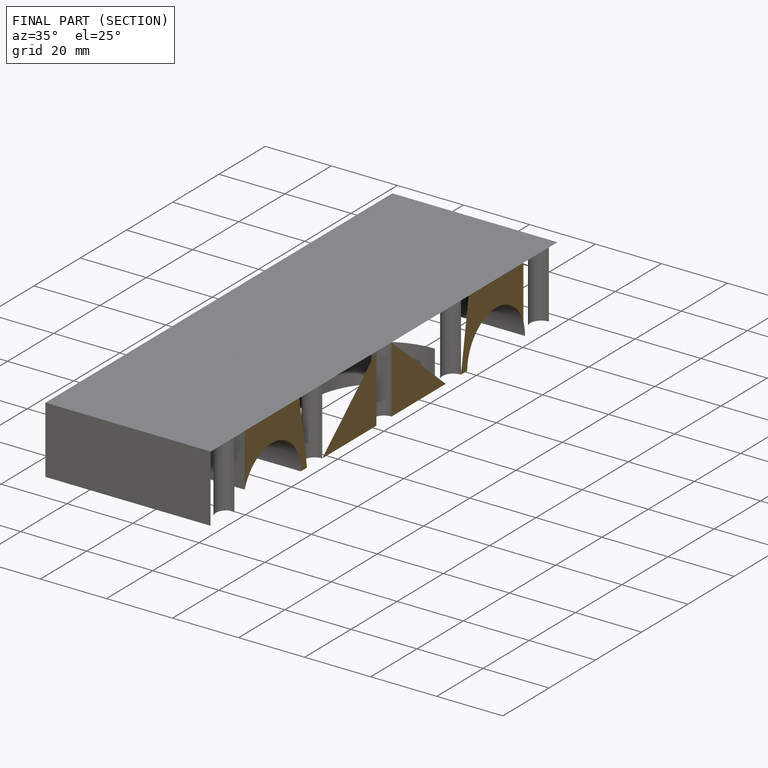
[diagram: finished part — half-section view (interior)]
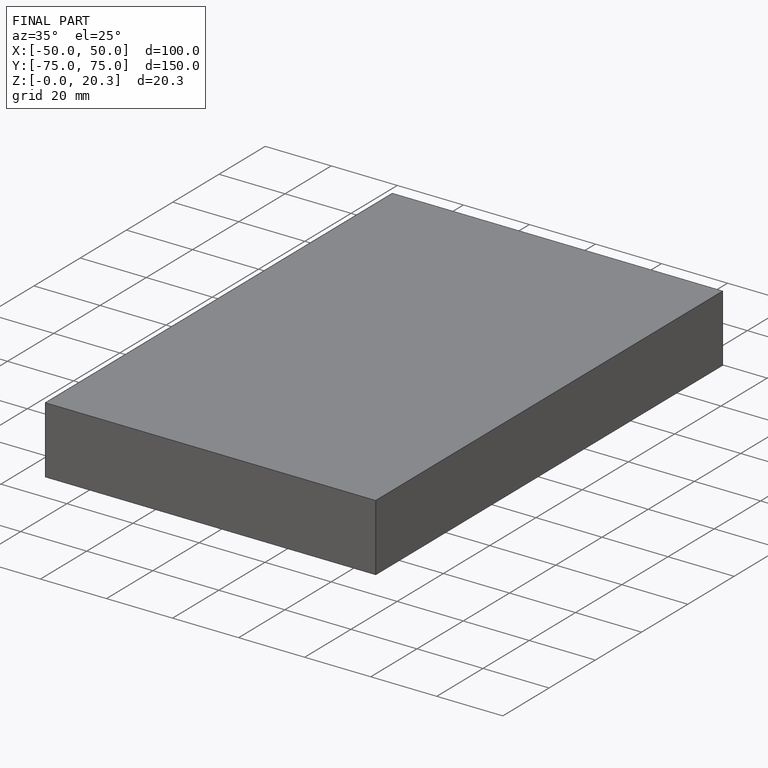
[diagram: finished part — iso view with bounding-box wireframe]
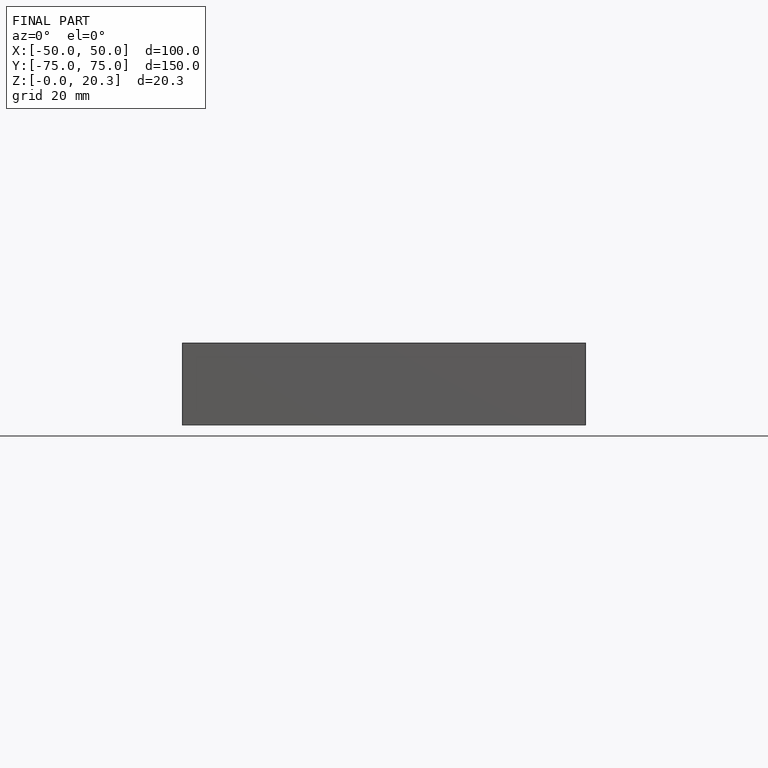
[diagram: finished part — front view with bounding-box wireframe]
